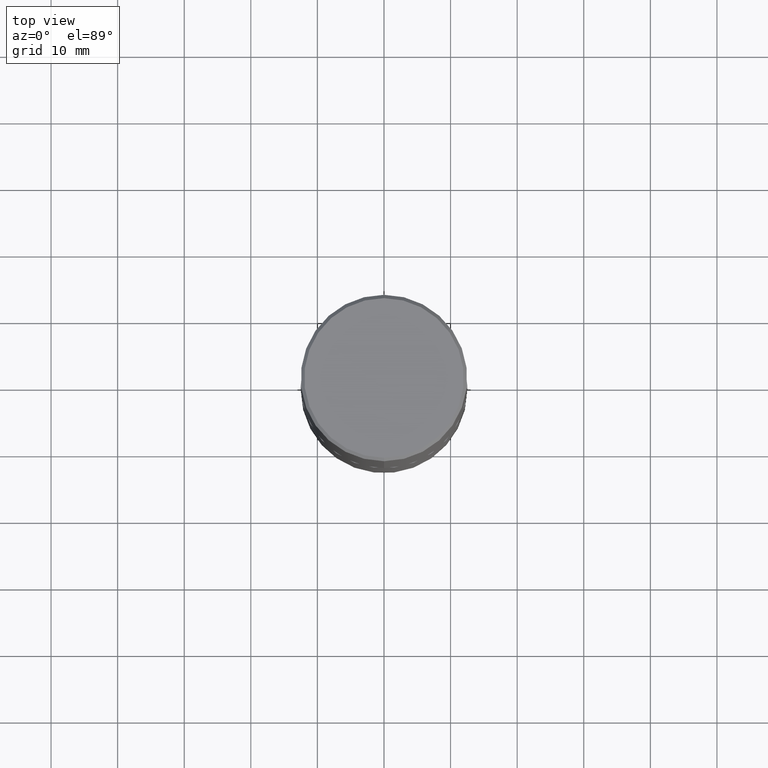
[diagram: clean part render]
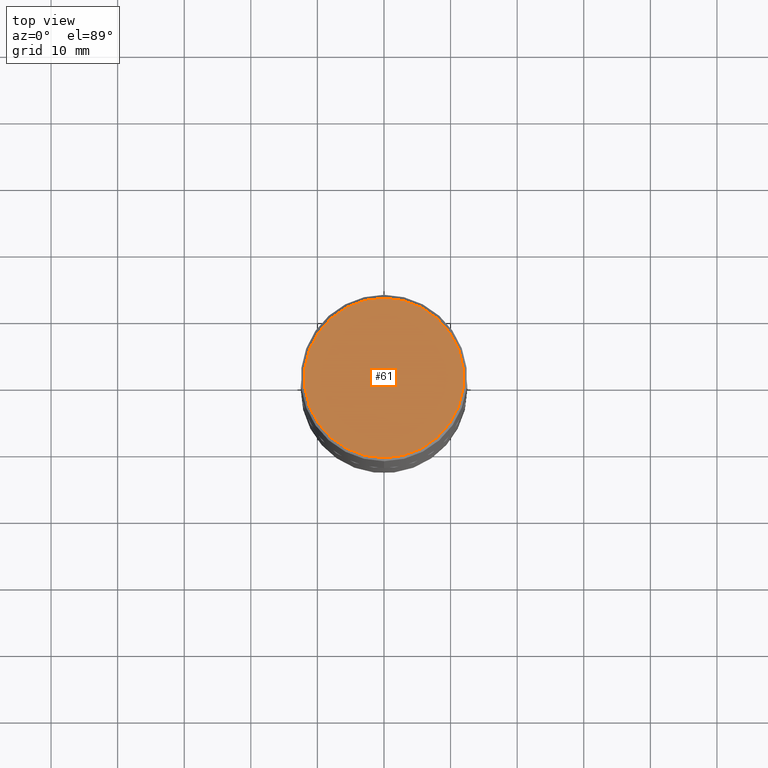
[diagram: same view with one face highlighted and labeled with its STEP entity id]
A machine part, top view. The second image highlights one B-rep face of the part: STEP entity #61.
In plain terms, the highlighted planar face has unit normal (0, -0, -1).
Its self-contained STEP definition (entity closure, byte-faithful):
#6 = CARTESIAN_POINT ( 'NONE',  ( 3.297005828269569180E-15, 0.4721499999999997921, -1.572350238809718897E-15 ) ) ;
#26 = EDGE_CURVE ( 'NONE', #65, #210, #152, .T. ) ;
#42 = PLANE ( 'NONE',  #192 ) ;
#43 = DIRECTION ( 'NONE',  ( 2.443455779928216306E-29, -3.494364107017394124E-15, -1.000000000000000000 ) ) ;
#60 = EDGE_LOOP ( 'NONE', ( #245, #87 ) ) ;
#61 = ADVANCED_FACE ( 'NONE', ( #139 ), #42, .F. ) ;
#65 = VERTEX_POINT ( 'NONE', #180 ) ;
#74 = CARTESIAN_POINT ( 'NONE',  ( -3.788029597653915007E-45, 5.417227015563283048E-31, 1.550275486370864429E-16 ) ) ;
#87 = ORIENTED_EDGE ( 'NONE', *, *, #26, .T. ) ;
#104 = DIRECTION ( 'NONE',  ( -2.443455779928216306E-29, 3.494364107017394518E-15, 1.000000000000000000 ) ) ;
#126 = AXIS2_PLACEMENT_3D ( 'NONE', #74, #290, #332 ) ;
#127 = CARTESIAN_POINT ( 'NONE',  ( 3.366835455046432478E-15, 0.4721499999999997921, -1.494836464491175540E-15 ) ) ;
#139 = FACE_OUTER_BOUND ( 'NONE', #60, .T. ) ;
#152 = CIRCLE ( 'NONE', #126, 0.4721499999999997921 ) ;
#180 = CARTESIAN_POINT ( 'NONE',  ( -3.307789109625542142E-15, -0.4721499999999997921, 1.804891561765348180E-15 ) ) ;
#192 = AXIS2_PLACEMENT_3D ( 'NONE', #6, #43, #297 ) ;
#199 = AXIS2_PLACEMENT_3D ( 'NONE', #267, #104, #296 ) ;
#210 = VERTEX_POINT ( 'NONE', #127 ) ;
#236 = CIRCLE ( 'NONE', #199, 0.4721499999999997921 ) ;
#245 = ORIENTED_EDGE ( 'NONE', *, *, #389, .T. ) ;
#267 = CARTESIAN_POINT ( 'NONE',  ( -3.788029597653915007E-45, 5.417227015563283048E-31, 1.550275486370864429E-16 ) ) ;
#290 = DIRECTION ( 'NONE',  ( -2.443455779928216306E-29, 3.494364107017394518E-15, 1.000000000000000000 ) ) ;
#296 = DIRECTION ( 'NONE',  ( -6.982962677686265922E-15, -1.000000000000000000, 3.494364107017394124E-15 ) ) ;
#297 = DIRECTION ( 'NONE',  ( 6.982962677686265922E-15, 1.000000000000000000, -3.494364107017394124E-15 ) ) ;
#332 = DIRECTION ( 'NONE',  ( -6.982962677686265922E-15, -1.000000000000000000, 3.494364107017394124E-15 ) ) ;
#389 = EDGE_CURVE ( 'NONE', #210, #65, #236, .T. ) ;